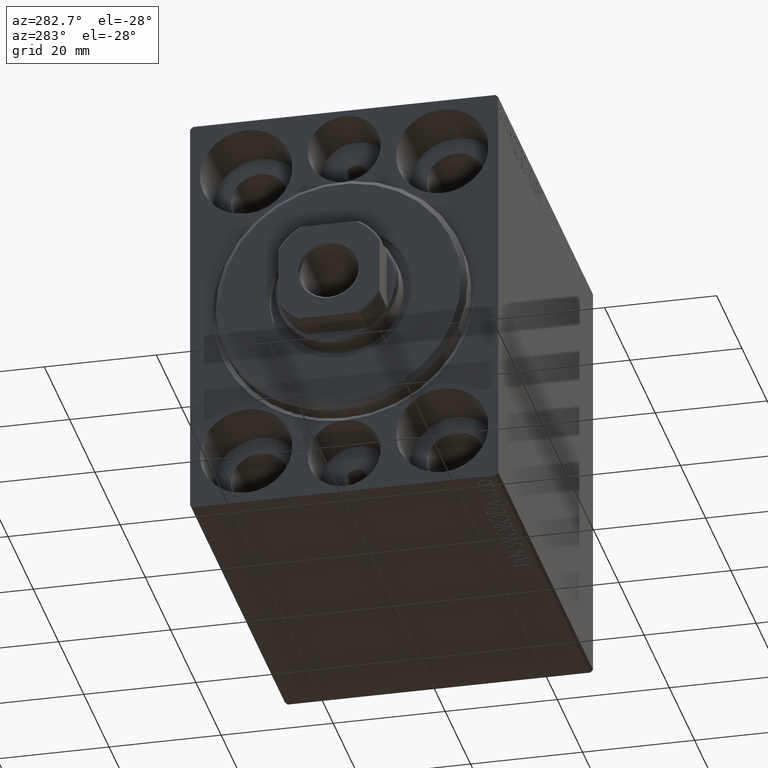
[diagram: clean part render]
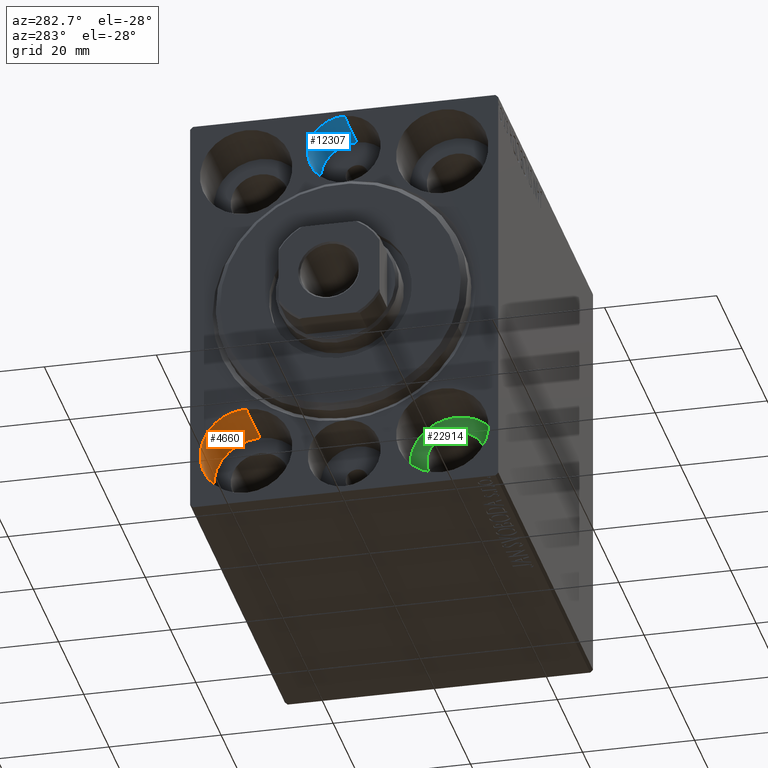
[diagram: same view with three faces highlighted in distinct colors, each labeled with its STEP entity id]
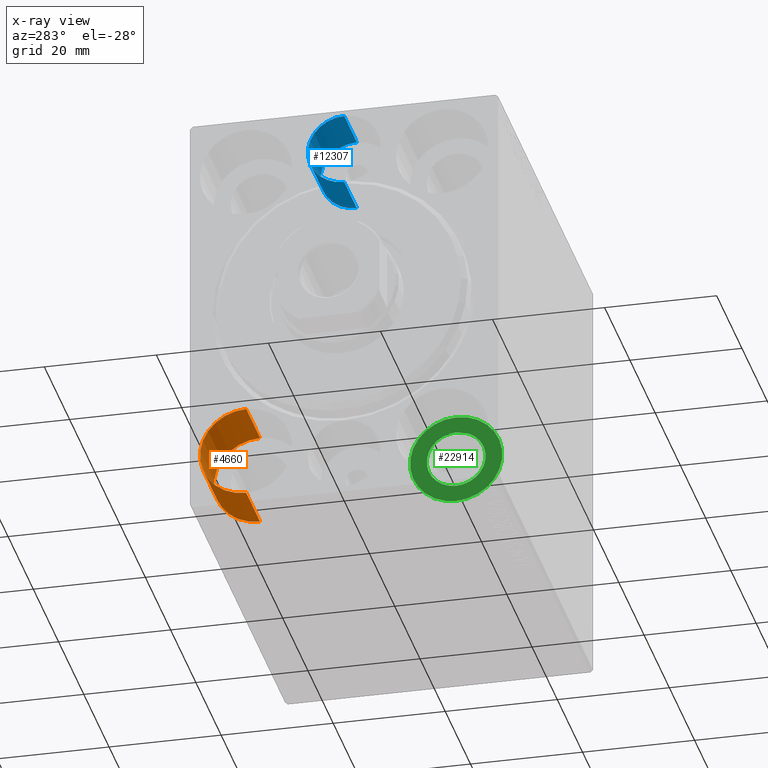
[diagram: x-ray of the same camera — body ghosted, the three highlighted faces saturated]
A machine part, auxiliary view with three faces highlighted in distinct colors.
The next image is the same camera in x-ray (body ghosted, the three faces saturated) — at least one of them is partly hidden behind the body in this view.
Their STEP definitions:

[orange] entity #4660 — the highlighted cylindrical surface (partial cylindrical patch) has radius 8.25 mm, axis along (-1, -0, -0).
#166 = VERTEX_POINT ( 'NONE', #29800 ) ;
#384 = CARTESIAN_POINT ( 'NONE',  ( 11.00000000000000000, 17.49999999999999645, -27.50000000000000355 ) ) ;
#1277 = CIRCLE ( 'NONE', #23878, 8.250000000000000000 ) ;
#1709 = CARTESIAN_POINT ( 'NONE',  ( 11.00000000000000000, 17.49999999999999645, -19.25000000000000355 ) ) ;
#1998 = VECTOR ( 'NONE', #14092, 1000.000000000000000 ) ;
#4339 = ORIENTED_EDGE ( 'NONE', *, *, #15761, .T. ) ;
#4660 = ADVANCED_FACE ( 'NONE', ( #19246 ), #23833, .F. ) ;
#7626 = CARTESIAN_POINT ( 'NONE',  ( 11.00000000000000000, 17.49999999999999645, -19.25000000000000355 ) ) ;
#9984 = EDGE_CURVE ( 'NONE', #17958, #18841, #32143, .T. ) ;
#11149 = ORIENTED_EDGE ( 'NONE', *, *, #27582, .T. ) ;
#12008 = VECTOR ( 'NONE', #41864, 1000.000000000000000 ) ;
#12263 = AXIS2_PLACEMENT_3D ( 'NONE', #384, #22781, #33165 ) ;
#12791 = CARTESIAN_POINT ( 'NONE',  ( 0.000000000000000000, 17.49999999999999645, -19.25000000000000355 ) ) ;
#13691 = CARTESIAN_POINT ( 'NONE',  ( 0.000000000000000000, 17.49999999999999645, -27.50000000000000355 ) ) ;
#14092 = DIRECTION ( 'NONE',  ( -1.000000000000000000, -0.000000000000000000, -0.000000000000000000 ) ) ;
#15761 = EDGE_CURVE ( 'NONE', #25999, #166, #1277, .T. ) ;
#17958 = VERTEX_POINT ( 'NONE', #1709 ) ;
#18841 = VERTEX_POINT ( 'NONE', #35958 ) ;
#19246 = FACE_OUTER_BOUND ( 'NONE', #25394, .T. ) ;
#21459 = EDGE_CURVE ( 'NONE', #18841, #166, #30666, .T. ) ;
#22781 = DIRECTION ( 'NONE',  ( -1.000000000000000000, -0.000000000000000000, -0.000000000000000000 ) ) ;
#23833 = CYLINDRICAL_SURFACE ( 'NONE', #12263, 8.250000000000000000 ) ;
#23878 = AXIS2_PLACEMENT_3D ( 'NONE', #13691, #43768, #36481 ) ;
#25394 = EDGE_LOOP ( 'NONE', ( #32232, #37632, #11149, #4339 ) ) ;
#25999 = VERTEX_POINT ( 'NONE', #12791 ) ;
#27582 = EDGE_CURVE ( 'NONE', #17958, #25999, #28370, .T. ) ;
#28370 = LINE ( 'NONE', #7626, #12008 ) ;
#29800 = CARTESIAN_POINT ( 'NONE',  ( 0.000000000000000000, 17.49999999999999645, -35.75000000000000711 ) ) ;
#30666 = LINE ( 'NONE', #33550, #1998 ) ;
#30808 = CARTESIAN_POINT ( 'NONE',  ( 11.00000000000000000, 17.49999999999999645, -27.50000000000000355 ) ) ;
#32143 = CIRCLE ( 'NONE', #34269, 8.250000000000000000 ) ;
#32232 = ORIENTED_EDGE ( 'NONE', *, *, #21459, .F. ) ;
#33165 = DIRECTION ( 'NONE',  ( 0.000000000000000000, 0.000000000000000000, 1.000000000000000000 ) ) ;
#33550 = CARTESIAN_POINT ( 'NONE',  ( 11.00000000000000000, 17.49999999999999645, -35.75000000000000711 ) ) ;
#34269 = AXIS2_PLACEMENT_3D ( 'NONE', #30808, #34568, #37240 ) ;
#34568 = DIRECTION ( 'NONE',  ( -1.000000000000000000, 0.000000000000000000, 0.000000000000000000 ) ) ;
#35958 = CARTESIAN_POINT ( 'NONE',  ( 11.00000000000000000, 17.49999999999999645, -35.75000000000000711 ) ) ;
#36481 = DIRECTION ( 'NONE',  ( 0.000000000000000000, 0.000000000000000000, 1.000000000000000000 ) ) ;
#37240 = DIRECTION ( 'NONE',  ( 0.000000000000000000, 0.000000000000000000, 1.000000000000000000 ) ) ;
#37632 = ORIENTED_EDGE ( 'NONE', *, *, #9984, .F. ) ;
#41864 = DIRECTION ( 'NONE',  ( -1.000000000000000000, -0.000000000000000000, -0.000000000000000000 ) ) ;
#43768 = DIRECTION ( 'NONE',  ( -1.000000000000000000, 0.000000000000000000, 0.000000000000000000 ) ) ;

[blue] entity #12307 — the highlighted cylindrical surface (partial cylindrical patch) has radius 6.5 mm, axis along (-1, -0, -0).
#903 = VERTEX_POINT ( 'NONE', #6961 ) ;
#1817 = CIRCLE ( 'NONE', #3239, 6.499999999999999112 ) ;
#3238 = CARTESIAN_POINT ( 'NONE',  ( 0.000000000000000000, 0.000000000000000000, 23.50000000000000355 ) ) ;
#3239 = AXIS2_PLACEMENT_3D ( 'NONE', #7553, #4028, #23484 ) ;
#3543 = CARTESIAN_POINT ( 'NONE',  ( 0.000000000000000000, 0.000000000000000000, 36.50000000000000000 ) ) ;
#4028 = DIRECTION ( 'NONE',  ( -1.000000000000000000, 0.000000000000000000, 0.000000000000000000 ) ) ;
#4269 = EDGE_CURVE ( 'NONE', #903, #42857, #8269, .T. ) ;
#6961 = CARTESIAN_POINT ( 'NONE',  ( 10.00000000000000000, 7.960204194457798435E-16, 23.50000000000000000 ) ) ;
#7549 = CARTESIAN_POINT ( 'NONE',  ( 10.00000000000000000, 0.000000000000000000, 36.50000000000000000 ) ) ;
#7553 = CARTESIAN_POINT ( 'NONE',  ( 10.00000000000000000, 0.000000000000000000, 30.00000000000000000 ) ) ;
#8269 = LINE ( 'NONE', #35236, #23584 ) ;
#8685 = DIRECTION ( 'NONE',  ( -1.000000000000000000, -0.000000000000000000, -0.000000000000000000 ) ) ;
#9693 = AXIS2_PLACEMENT_3D ( 'NONE', #12644, #16630, #30099 ) ;
#10313 = EDGE_CURVE ( 'NONE', #15247, #903, #1817, .T. ) ;
#10557 = VERTEX_POINT ( 'NONE', #3543 ) ;
#11532 = ORIENTED_EDGE ( 'NONE', *, *, #4269, .F. ) ;
#11802 = CIRCLE ( 'NONE', #9693, 6.499999999999999112 ) ;
#12307 = ADVANCED_FACE ( 'NONE', ( #21145 ), #37498, .F. ) ;
#12644 = CARTESIAN_POINT ( 'NONE',  ( 0.000000000000000000, 0.000000000000000000, 30.00000000000000000 ) ) ;
#14681 = EDGE_CURVE ( 'NONE', #10557, #42857, #11802, .T. ) ;
#15247 = VERTEX_POINT ( 'NONE', #17170 ) ;
#16630 = DIRECTION ( 'NONE',  ( -1.000000000000000000, 0.000000000000000000, 0.000000000000000000 ) ) ;
#17163 = DIRECTION ( 'NONE',  ( -1.000000000000000000, -0.000000000000000000, -0.000000000000000000 ) ) ;
#17170 = CARTESIAN_POINT ( 'NONE',  ( 10.00000000000000000, 0.000000000000000000, 36.50000000000000000 ) ) ;
#21145 = FACE_OUTER_BOUND ( 'NONE', #32615, .T. ) ;
#23484 = DIRECTION ( 'NONE',  ( 0.000000000000000000, 0.000000000000000000, 1.000000000000000000 ) ) ;
#23584 = VECTOR ( 'NONE', #8685, 1000.000000000000000 ) ;
#24238 = CARTESIAN_POINT ( 'NONE',  ( 10.00000000000000000, 0.000000000000000000, 30.00000000000000000 ) ) ;
#24352 = DIRECTION ( 'NONE',  ( -1.000000000000000000, -0.000000000000000000, -0.000000000000000000 ) ) ;
#25873 = AXIS2_PLACEMENT_3D ( 'NONE', #24238, #17163, #30637 ) ;
#29948 = VECTOR ( 'NONE', #24352, 1000.000000000000000 ) ;
#30099 = DIRECTION ( 'NONE',  ( 0.000000000000000000, 0.000000000000000000, 1.000000000000000000 ) ) ;
#30637 = DIRECTION ( 'NONE',  ( 0.000000000000000000, 0.000000000000000000, 1.000000000000000000 ) ) ;
#32615 = EDGE_LOOP ( 'NONE', ( #11532, #36629, #42581, #37080 ) ) ;
#33876 = EDGE_CURVE ( 'NONE', #15247, #10557, #34943, .T. ) ;
#34943 = LINE ( 'NONE', #7549, #29948 ) ;
#35236 = CARTESIAN_POINT ( 'NONE',  ( 10.00000000000000000, 7.960204194457796463E-16, 23.50000000000000000 ) ) ;
#36629 = ORIENTED_EDGE ( 'NONE', *, *, #10313, .F. ) ;
#37080 = ORIENTED_EDGE ( 'NONE', *, *, #14681, .T. ) ;
#37498 = CYLINDRICAL_SURFACE ( 'NONE', #25873, 6.499999999999999112 ) ;
#42581 = ORIENTED_EDGE ( 'NONE', *, *, #33876, .T. ) ;
#42857 = VERTEX_POINT ( 'NONE', #3238 ) ;

[green] entity #22914 — the highlighted planar face has unit normal (-1, 0, 0).
#607 = AXIS2_PLACEMENT_3D ( 'NONE', #25172, #38657, #8373 ) ;
#3205 = CIRCLE ( 'NONE', #39188, 8.250000000000000000 ) ;
#7422 = VERTEX_POINT ( 'NONE', #11159 ) ;
#8373 = DIRECTION ( 'NONE',  ( 0.000000000000000000, 0.000000000000000000, 1.000000000000000000 ) ) ;
#9126 = EDGE_CURVE ( 'NONE', #40147, #7422, #3205, .T. ) ;
#10582 = CARTESIAN_POINT ( 'NONE',  ( 11.00000000000000000, -17.50000000000000355, -19.25000000000000355 ) ) ;
#10877 = VERTEX_POINT ( 'NONE', #29130 ) ;
#11159 = CARTESIAN_POINT ( 'NONE',  ( 11.00000000000000000, -17.50000000000000355, -35.75000000000000711 ) ) ;
#11969 = VERTEX_POINT ( 'NONE', #32913 ) ;
#13103 = AXIS2_PLACEMENT_3D ( 'NONE', #21435, #41764, #38241 ) ;
#13807 = CIRCLE ( 'NONE', #13103, 8.250000000000000000 ) ;
#18122 = ORIENTED_EDGE ( 'NONE', *, *, #9126, .T. ) ;
#20916 = EDGE_CURVE ( 'NONE', #11969, #10877, #25993, .T. ) ;
#21068 = DIRECTION ( 'NONE',  ( 0.000000000000000000, 0.000000000000000000, 1.000000000000000000 ) ) ;
#21435 = CARTESIAN_POINT ( 'NONE',  ( 11.00000000000000000, -17.50000000000000355, -27.50000000000000355 ) ) ;
#21575 = CARTESIAN_POINT ( 'NONE',  ( 11.00000000000000000, -17.50000000000000355, -27.50000000000000355 ) ) ;
#22914 = ADVANCED_FACE ( 'NONE', ( #35340, #24959 ), #28053, .T. ) ;
#24959 = FACE_OUTER_BOUND ( 'NONE', #40629, .T. ) ;
#25172 = CARTESIAN_POINT ( 'NONE',  ( 11.00000000000000000, 0.000000000000000000, 0.000000000000000000 ) ) ;
#25993 = CIRCLE ( 'NONE', #42221, 5.250000000000000888 ) ;
#26921 = DIRECTION ( 'NONE',  ( 0.000000000000000000, 0.000000000000000000, 1.000000000000000000 ) ) ;
#28053 = PLANE ( 'NONE',  #607 ) ;
#29023 = DIRECTION ( 'NONE',  ( 0.000000000000000000, 0.000000000000000000, 1.000000000000000000 ) ) ;
#29130 = CARTESIAN_POINT ( 'NONE',  ( 10.99999999999999645, -17.50000000000000355, -32.75000000000000000 ) ) ;
#29139 = EDGE_CURVE ( 'NONE', #10877, #11969, #41027, .T. ) ;
#29791 = DIRECTION ( 'NONE',  ( -1.000000000000000000, 0.000000000000000000, 0.000000000000000000 ) ) ;
#29853 = EDGE_LOOP ( 'NONE', ( #37165, #37367 ) ) ;
#31725 = DIRECTION ( 'NONE',  ( -1.000000000000000000, 0.000000000000000000, 0.000000000000000000 ) ) ;
#32913 = CARTESIAN_POINT ( 'NONE',  ( 10.99999999999999645, -17.50000000000000355, -22.25000000000000355 ) ) ;
#33554 = CARTESIAN_POINT ( 'NONE',  ( 10.99999999999999645, -17.50000000000000355, -27.50000000000000355 ) ) ;
#34648 = AXIS2_PLACEMENT_3D ( 'NONE', #33554, #29791, #26921 ) ;
#35340 = FACE_BOUND ( 'NONE', #29853, .T. ) ;
#37165 = ORIENTED_EDGE ( 'NONE', *, *, #20916, .F. ) ;
#37367 = ORIENTED_EDGE ( 'NONE', *, *, #29139, .F. ) ;
#38241 = DIRECTION ( 'NONE',  ( 0.000000000000000000, 0.000000000000000000, 1.000000000000000000 ) ) ;
#38657 = DIRECTION ( 'NONE',  ( -1.000000000000000000, 0.000000000000000000, 0.000000000000000000 ) ) ;
#39188 = AXIS2_PLACEMENT_3D ( 'NONE', #21575, #31725, #29023 ) ;
#39916 = CARTESIAN_POINT ( 'NONE',  ( 10.99999999999999645, -17.50000000000000355, -27.50000000000000355 ) ) ;
#40147 = VERTEX_POINT ( 'NONE', #10582 ) ;
#40629 = EDGE_LOOP ( 'NONE', ( #18122, #41880 ) ) ;
#41027 = CIRCLE ( 'NONE', #34648, 5.250000000000000888 ) ;
#41170 = DIRECTION ( 'NONE',  ( -1.000000000000000000, 0.000000000000000000, 0.000000000000000000 ) ) ;
#41676 = EDGE_CURVE ( 'NONE', #7422, #40147, #13807, .T. ) ;
#41764 = DIRECTION ( 'NONE',  ( -1.000000000000000000, 0.000000000000000000, 0.000000000000000000 ) ) ;
#41880 = ORIENTED_EDGE ( 'NONE', *, *, #41676, .T. ) ;
#42221 = AXIS2_PLACEMENT_3D ( 'NONE', #39916, #41170, #21068 ) ;